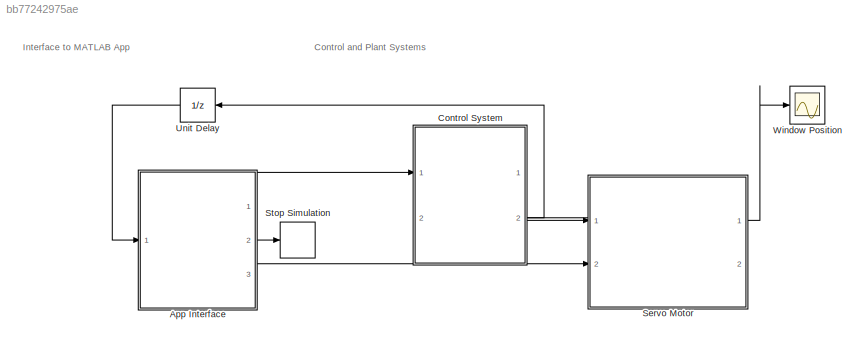
MODEL slx_bb77242975ae
KIND model
CONFIG AbsTol = auto
CONFIG EnableMultiTasking = on
CONFIG FixedStep = 0.1
CONFIG MaxStep = auto
CONFIG MinStep = auto
CONFIG PreLoadFcn = load sf_power_window_buses;
CONFIG RelTol = 1e-3
CONFIG SampleTimeConstraint = Unconstrained
CONFIG SolverName = FixedStepAuto
CONFIG StartTime = 0.0
CONFIG StopFcn = delete(app)\n
CONFIG StopTime = inf
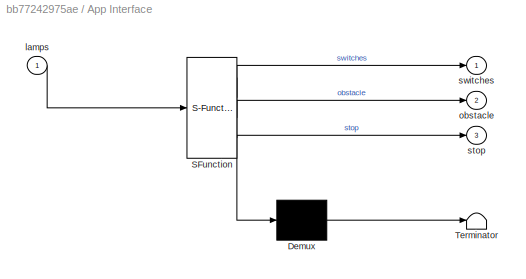
BLOCK [SubSystem] App Interface
  ErrorFcn = Stateflow.Translate.translate
  PermitHierarchicalResolution = ExplicitOnly
  PortSchema = {"entries":[{"content":{"sides":[{"content":{"connectorIds":["In1"]},"type":"ConnectorPlacement.EquallySpacedRectSide","uuid":"e1ad66b1-e568-496f-9e45-7c9e02fee1cc"},{"content":{"connectorIds":["Out1","Out3","Out2"],"side":"RIGHT"},"type":"ConnectorPlacement.EquallySpacedRectSide","uuid":"048571b2-7846-48ed-94de-fbaeee814e01"},{"content":{"connectorIds":[],"side":"TOP"},"type":"ConnectorPlacement....<+398ch>
  Ports = [1, 3]
  RequestExecContextInheritance = off
  SFBlockType = Chart
  TreatAsAtomicUnit = on
BLOCK [Demux] App Interface/ Demux 
  Outputs = 1
  Ports = [1, 1]
BLOCK [S-Function] App Interface/ SFunction 
  EnableBusSupport = on
  FunctionName = sf_sfun
  PortCounts = [1 4]
  Ports = [1, 4]
  SFcnIsStateOwnerBlock = off
  SFunctionDeploymentMode = off
  Tag = Stateflow S-Function 1
BLOCK [Terminator] App Interface/ Terminator 
BLOCK [Inport] App Interface/lamps
BLOCK [Outport] App Interface/obstacle
  Port = 2
BLOCK [Outport] App Interface/stop
  Port = 3
BLOCK [Outport] App Interface/switches
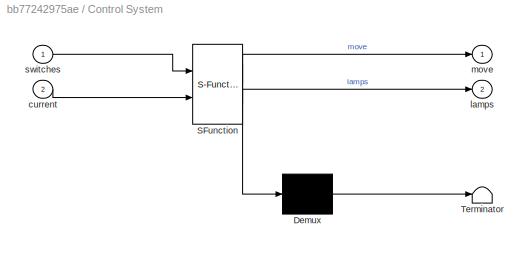
BLOCK [SubSystem] Control System
  ErrorFcn = Stateflow.Translate.translate
  PermitHierarchicalResolution = ExplicitOnly
  PortSchema = {"entries":[{"content":{"sides":[{"content":{"connectorIds":["In1"]},"type":"ConnectorPlacement.EquallySpacedRectSide","uuid":"956dd6a2-1182-4713-a68f-9bb5f3c20574"},{"content":{"connectorIds":["Out2","Out1","In2"],"side":"RIGHT"},"type":"ConnectorPlacement.EquallySpacedRectSide","uuid":"f7d18ef9-efa5-4a0e-963a-79cd1ad1edb5"},{"content":{"connectorIds":[],"side":"TOP"},"type":"ConnectorPlacement.E...<+397ch>
  Ports = [2, 2]
  RequestExecContextInheritance = off
  SFBlockType = Chart
  TreatAsAtomicUnit = on
BLOCK [Demux] Control System/ Demux 
  Outputs = 1
  Ports = [1, 1]
BLOCK [S-Function] Control System/ SFunction 
  EnableBusSupport = on
  FunctionName = sf_sfun
  PortCounts = [2 3]
  Ports = [2, 3]
  SFcnIsStateOwnerBlock = off
  SFunctionDeploymentMode = off
  Tag = Stateflow S-Function 3
BLOCK [Terminator] Control System/ Terminator 
BLOCK [Inport] Control System/current
  Port = 2
BLOCK [Outport] Control System/lamps
  Port = 2
BLOCK [Outport] Control System/move
  VectorParamsAs1DForOutWhenUnconnected = off
BLOCK [Inport] Control System/switches
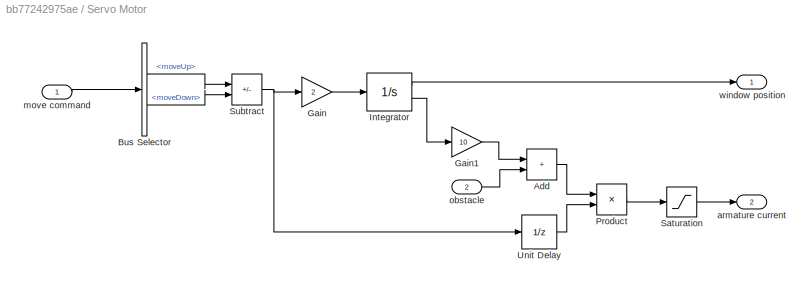
BLOCK [SubSystem] Servo Motor
  PortSchema = {"entries":[{"content":{"sides":[{"content":{"connectorIds":["In1","Out2","In2"]},"type":"ConnectorPlacement.EquallySpacedRectSide","uuid":"b0d36c6e-df2b-4eba-abc8-e692efa24438"},{"content":{"connectorIds":["Out1"],"side":"RIGHT"},"type":"ConnectorPlacement.EquallySpacedRectSide","uuid":"c7740b09-28d0-44f6-9d1c-d0fe693b5449"},{"content":{"connectorIds":[],"side":"TOP"},"type":"ConnectorPlacement.E...<+541ch>
  Ports = [2, 2]
  RequestExecContextInheritance = off
BLOCK [Sum] Servo Motor/Add
  IconShape = rectangular
  Ports = [2, 1]
BLOCK [BusSelector] Servo Motor/Bus Selector
  DialogController = Simulink.DDGSource_BusSelector
  NameLocation = left
  OutputSignals = moveUp,moveDown
  Ports = [1, 2]
BLOCK [Gain] Servo Motor/Gain
  Gain = 2
BLOCK [Gain] Servo Motor/Gain1
  Gain = 10
BLOCK [Integrator] Servo Motor/Integrator
  LimitOutput = on
  LowerSaturationLimit = 0
  Ports = [1, 2]
  ShowSaturationPort = on
  UpperSaturationLimit = 10
BLOCK [Product] Servo Motor/Product
  Ports = [2, 1]
BLOCK [Saturate] Servo Motor/Saturation
  LowerLimit = 0
  UpperLimit = 10
BLOCK [Sum] Servo Motor/Subtract
  IconShape = rectangular
  Inputs = +-
  OutDataTypeStr = double
  Ports = [2, 1]
BLOCK [UnitDelay] Servo Motor/Unit Delay
  HasFrameUpgradeWarning = on
  SampleTime = -1
BLOCK [Outport] Servo Motor/armature current
  Port = 2
BLOCK [Inport] Servo Motor/move command
BLOCK [Inport] Servo Motor/obstacle
  Port = 2
BLOCK [Outport] Servo Motor/window position
BLOCK [Stop] Stop Simulation
BLOCK [UnitDelay] Unit Delay
  HasFrameUpgradeWarning = on
  SampleTime = -1
BLOCK [Scope] Window Position
  Floating = off
  NumInputPorts = 1
  Ports = [1]
  ScopeSpecificationString = Simulink.scopes.TimeScopeBlockCfg('CurrentConfiguration', extmgr.ConfigurationSet(extmgr.Configuration('Core','General UI',true),extmgr.Configuration('Core','Source UI',true),extmgr.Configuration('Sources','WiredSimulink',true),extmgr.Configuration('Visuals','Time Domain',true,'SerializedDisplays',{struct('MinYLimReal','-1.25','MaxYLimReal','11.25','YLabelReal','','MinYLimMag','0.00000','MaxYLimMa...<+1463ch>
ANNOTATION (root): Control and Plant Systems
ANNOTATION (root): Interface to MATLAB App
LINE App Interface:1 -> Control System:1
LINE App Interface:2 -> Servo Motor:2
LINE App Interface:3 -> Stop Simulation:1
LINE Control System:1 -> Servo Motor:1
LINE Control System:2 -> Unit Delay:1
LINE Servo Motor/Add:1 -> Servo Motor/Product:1
LINE Servo Motor/Bus Selector:1 -> Servo Motor/Subtract:1
LINE Servo Motor/Bus Selector:2 -> Servo Motor/Subtract:2
LINE Servo Motor/Gain1:1 -> Servo Motor/Add:1
LINE Servo Motor/Gain:1 -> Servo Motor/Integrator:1
LINE Servo Motor/Integrator:1 -> Servo Motor/window position:1
LINE Servo Motor/Integrator:2 -> Servo Motor/Gain1:1
LINE Servo Motor/Product:1 -> Servo Motor/Saturation:1
LINE Servo Motor/Saturation:1 -> Servo Motor/armature current:1
NET Servo Motor/Subtract:1 -> Servo Motor/Gain:1, Servo Motor/Unit Delay:1
LINE Servo Motor/Unit Delay:1 -> Servo Motor/Product:2
LINE Servo Motor/move command:1 -> Servo Motor/Bus Selector:1
LINE Servo Motor/obstacle:1 -> Servo Motor/Add:2
LINE Servo Motor:1 -> Window Position:1
LINE Servo Motor:2 -> Control System:2
LINE Unit Delay:1 -> App Interface:1
note: NET lines group one-source signal fan-out (src -> all destinations, sorted); 1:1 wires keep LINE
CHART App Interface states=2 transitions=2
  STATE_LABEL "InterfaceFromApp\nen:\n   coder.extrinsic('sf_power_window_app','updateLamps');\n   app = sf_power_window_app(this);\n   initializeData();\ndu:\n   if hasChanged(lamps)\n       updateLamps(app);\n   end\n"
  STATE_LABEL 'initializeData'
  STATE_LABEL '{\n switches.driver_up = false;\n switches.driver_down = false;\n switches.passenger_up = false;\n switches.passenger_down = false;\n obstacle = false;\n stop = false;\n}'
  STATE_LABEL 'initializeData'
  STATE_LABEL '{\n switches.driver_up = false;\n switches.driver_down = false;\n switches.passenger_up = false;\n switches.passenger_down = false;\n obstacle = false;\n stop = false;\n}'
CHART Control System states=27 transitions=47
  STATE_LABEL 'Switch\nen:\n   initializeLamps();\ndu:\n   detectObstacles();\n   checkSwitches();'
  STATE_LABEL 'initializeLamps'
  STATE_LABEL '{\n lamps.up = false;\n lamps.down = false;\n lamps.auto = false;\n lamps.obstacle = false;\n lamps.timeout = false;\n}'
  STATE_LABEL 'detectObstacles'
  STATE_LABEL '[current > 1]'
  STATE_LABEL '{send(ENDSTOP,Logic);}'
  STATE_LABEL '[current > 0]'
  STATE_LABEL '{send(OBSTACLE,Logic);}'
  STATE_LABEL 'checkSwitches'
  STATE_LABEL 'SCRIPT:\nfunction checkSwitches\n\naVarTruthTableCondition_1 = false;\naVarTruthTableCondition_2 = false;\naVarTruthTableCondition_3 = false;\naVarTruthTableCondition_4 = false;\n\n\n\naVarTruthTableCondition_1 = logical(switches.driver_up);\n\n\naVarTruthTableCondition_2 = logical(switches.driver_down);\n\n\naVarTruthTableCondition_3 = logical(switches.passenger_up);\n\n\naVarTruthTableCondition_4 = logical(switche...<+768ch>'
  STATE_LABEL 'initializeLamps'
  STATE_LABEL '{\n lamps.up = false;\n lamps.down = false;\n lamps.auto = false;\n lamps.obstacle = false;\n lamps.timeout = false;\n}'
  STATE_LABEL 'detectObstacles'
  STATE_LABEL '[current > 1]'
  STATE_LABEL '{send(ENDSTOP,Logic);}'
  STATE_LABEL '[current > 0]'
  STATE_LABEL '{send(OBSTACLE,Logic);}'
  STATE_LABEL 'checkSwitches'
  STATE_LABEL 'SCRIPT:\nfunction checkSwitches\n\naVarTruthTableCondition_1 = false;\naVarTruthTableCondition_2 = false;\naVarTruthTableCondition_3 = false;\naVarTruthTableCondition_4 = false;\n\n\n\naVarTruthTableCondition_1 = logical(switches.driver_up);\n\n\naVarTruthTableCondition_2 = logical(switches.driver_down);\n\n\naVarTruthTableCondition_3 = logical(switches.passenger_up);\n\n\naVarTruthTableCondition_4 = logical(switche...<+768ch>'
  STATE_LABEL 'go'
  STATE_LABEL 'neutral'
  STATE_LABEL '{\n move.moveUp = false;\n move.moveDown = false;\n lamps.up = false;\n lamps.down = false;\n}'
  STATE_LABEL 'up'
  STATE_LABEL '{\n move.moveUp = true;\n move.moveDown = false;\n lamps.up = true;\n lamps.down = false;\n}'
  STATE_LABEL 'down'
  STATE_LABEL '{\n move.moveUp = false;\n move.moveDown = true;\n lamps.up = false;\n lamps.down = true;\n}'
  STATE_LABEL 'neutral'
  STATE_LABEL '{\n move.moveUp = false;\n move.moveDown = false;\n lamps.up = false;\n lamps.down = false;\n}'
  STATE_LABEL 'up'
  STATE_LABEL '{\n move.moveUp = true;\n move.moveDown = false;\n lamps.up = true;\n lamps.down = false;\n}'
  STATE_LABEL 'down'
  STATE_LABEL '{\n move.moveUp = false;\n move.moveDown = true;\n lamps.up = false;\n lamps.down = true;\n}'
  STATE_LABEL 'Logic'
  STATE_LABEL 'Stop \nen:\n   go.neutral();\n'
  STATE_LABEL 'Mode'
  STATE_LABEL 'Waiting'
  STATE_LABEL 'Ready\nen: lamps.timeout = false;'
  STATE_LABEL 'NEUTRAL'
  STATE_LABEL 'Position'
  STATE_LABEL 'InTheMiddle'
CHART  states=0 transitions=0
CHART  states=0 transitions=0
